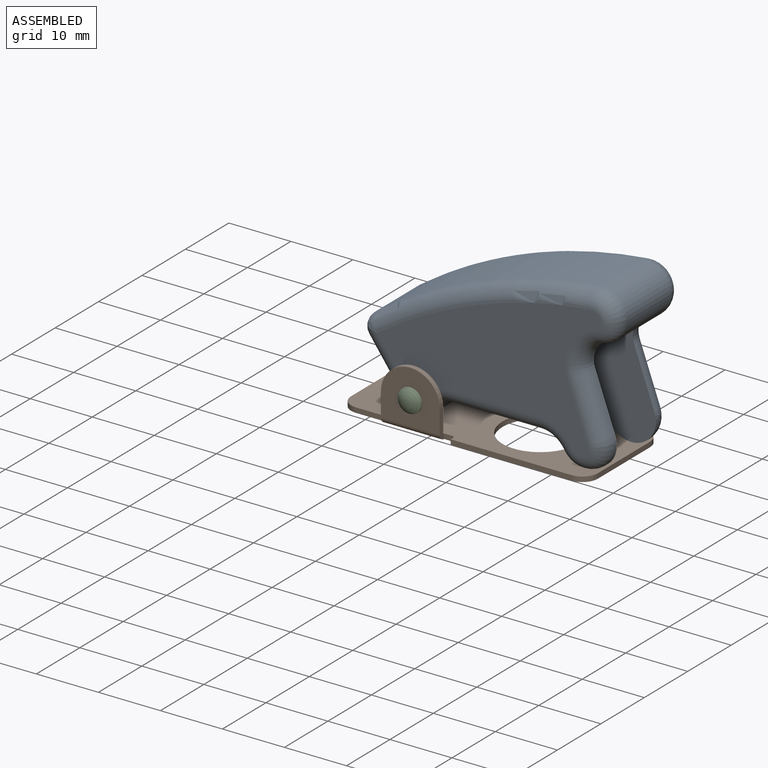
[diagram: assembled view]
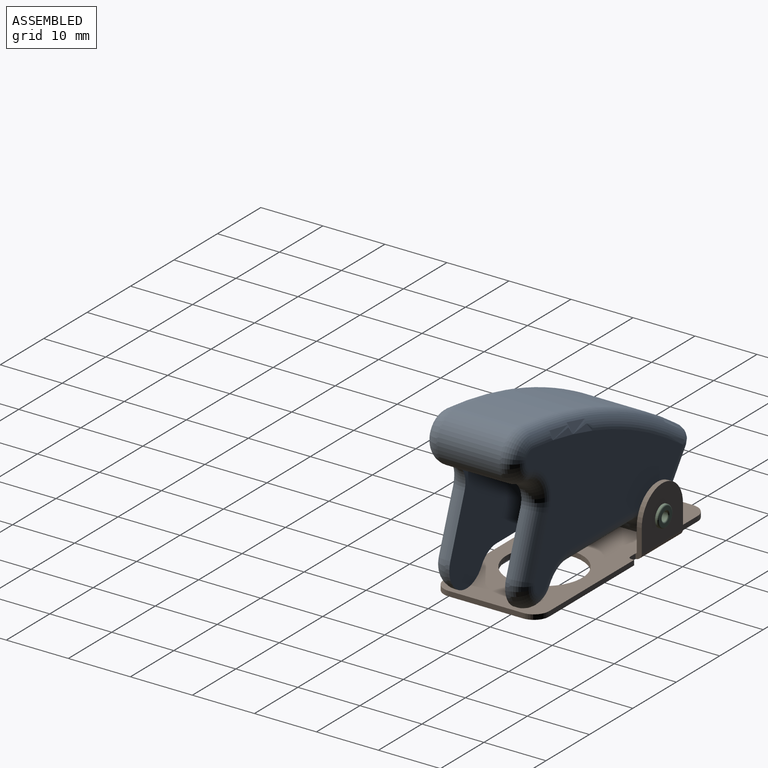
[diagram: assembled view, second angle]
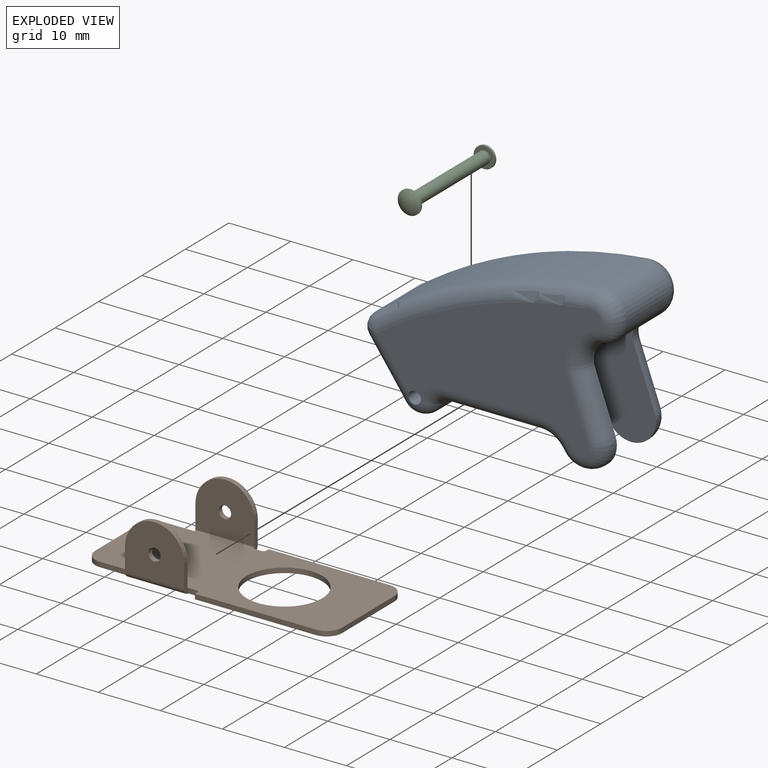
[diagram: exploded view]
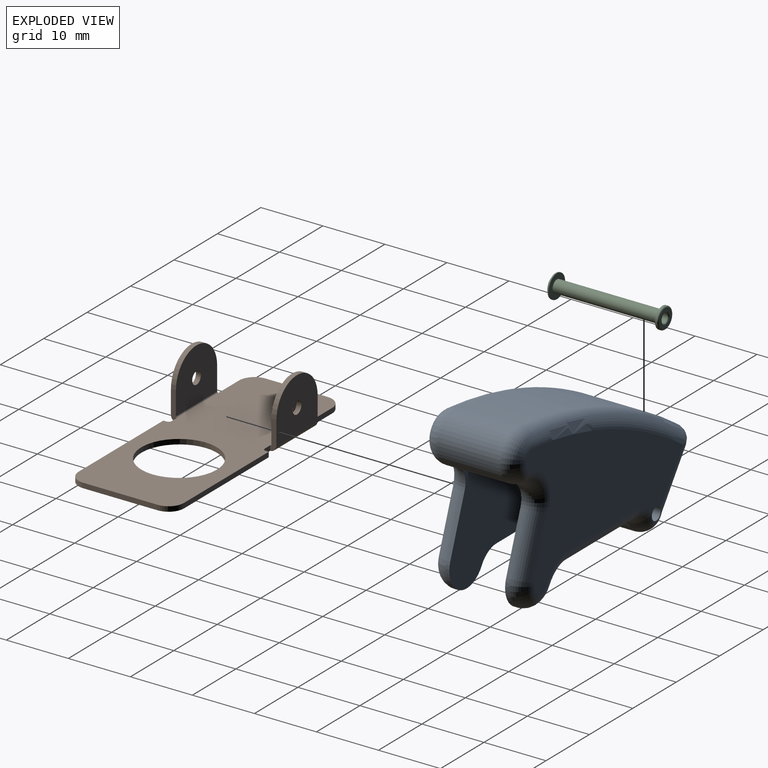
[diagram: exploded view, second angle]
ASSEMBLY  parts=3 mates=2
PART A: 47 faces, bbox 44.1x15.2x33 mm
  f0: plane 15.02x10mm, normal (0,0,-1), area 58mm2, adj f1,f9,f10,f17,f18,f19,f32,f45
  f1: cylinder r=4mm len=3.45mm, axis (0,1,0), area 2.1mm2, adj f0,f2,f18,f33
  f2: cylinder r=4mm len=7.45mm, axis (0,1,0), area 5.9mm2, adj f1,f3,f18,f31
  f3: plane 9x3.27mm, normal (0.94,0,0.34), area 4.8mm2, adj f2,f4,f18,f29
  f4: cylinder r=3.5mm len=4.6mm, axis (0,1,0), area 2.9mm2, adj f3,f14,f18,f27
  f5: cylinder r=75mm len=36.15mm, axis (0,1,0), area 389.9mm2, adj f6,f14,f23,f36
  f6: cylinder r=2mm len=10mm, axis (0,1,0), area 31.6mm2, adj f5,f7,f21,f34
  f7: plane 10.1x8.43mm, normal (-0.81,0,-0.58), area 103.9mm2, adj f6,f8,f22,f24,f35,f37
  f8: cylinder r=3mm len=10.1mm, axis (0,1,0), area 63.8mm2, adj f7,f9,f26,f39
  f9: cylinder r=2mm len=10.1mm, axis (0,1,0), area 23.2mm2, adj f0,f8,f28,f30,f41,f43
  f10: cylinder r=4mm len=3.45mm, axis (0,1,0), area 2.1mm2, adj f0,f11,f19,f46
  f11: cylinder r=4mm len=7.45mm, axis (0,1,0), area 5.9mm2, adj f10,f12,f19,f44
  f12: plane 9x3.27mm, normal (0.94,0,0.34), area 4.8mm2, adj f11,f13,f19,f42
  f13: cylinder r=3.5mm len=4.6mm, axis (0,1,0), area 2.9mm2, adj f12,f14,f19,f40
  f14: cylinder r=4mm len=10mm, axis (0,1,0), area 180.8mm2, adj f4,f5,f13,f17,f18,f19,f25,f38
  f15: plane 36.17x21.85mm, normal (0,-1,0), area 430.7mm2, adj f20,f35,f36,f38,f40,f42,f43,f44
  f16: plane 36.17x21.85mm, normal (0,1,0), area 430.7mm2, adj f20,f22,f23,f25,f27,f29,f30,f31
  f17: cylinder r=25mm len=18.43mm, axis (0,-1,0), area 224mm2, adj f0,f14,f18,f19
  f18: plane 22.38x21.14mm, normal (0,-1,0), area 275.4mm2, adj f0,f1,f2,f3,f4,f14,f17
  f19: plane 22.38x21.14mm, normal (0,1,0), area 275.4mm2, adj f0,f10,f11,f12,f13,f14,f17
  f20: cylinder r=1mm len=15mm, axis (0,-1,0), area 94.2mm2, adj f15,f16,f24,f26,f28,f37,f39,f41
  f21: bspline ~3.5x3.28mm, area 8.1mm2, adj f6,f22,f23
  f22: cylinder r=2.5mm len=9.19mm, axis (0.58,0,-0.81), area 36.4mm2, adj f7,f16,f21,f24
  f23: torus R=72.5mm, axis (0,-1,0), area 150.2mm2, adj f5,f16,f21,f25
  f24: bspline ~2.6x2.39mm, area 3.1mm2, adj f7,f20,f22,f26
  f25: torus R=1.5mm, axis (0,-1,0), area 36.4mm2, adj f14,f16,f23,f27
  f26: torus R=0.5mm, axis (0,1,0), area 16.5mm2, adj f8,f20,f24,f28
  f27: torus R=6mm, axis (0,-1,0), area 29.1mm2, adj f4,f16,f25,f29
  f28: bspline ~2.5x2.13mm, area 1.8mm2, adj f9,f20,f26,f30
  f29: cylinder r=2.5mm len=9.85mm, axis (-0.34,0,0.94), area 37.6mm2, adj f3,f16,f27,f31
  f30: torus R=4.5mm, axis (0,-1,0), area 11.2mm2, adj f9,f16,f28,f32
  f31: torus R=1.5mm, axis (0,-1,0), area 35.9mm2, adj f2,f16,f29,f33
  f32: cylinder r=2.5mm len=15.02mm, axis (1,0,0), area 59mm2, adj f0,f16,f30,f33
  f33: torus R=6.5mm, axis (0,-1,0), area 20mm2, adj f1,f16,f31,f32
  f34: bspline ~3.5x3.28mm, area 8.1mm2, adj f6,f35,f36
  f35: cylinder r=2.5mm len=9.19mm, axis (-0.58,0,0.81), area 36.4mm2, adj f7,f15,f34,f37
  f36: torus R=72.5mm, axis (0,-1,0), area 150.2mm2, adj f5,f15,f34,f38
  f37: bspline ~2.6x2.39mm, area 3.1mm2, adj f7,f20,f35,f39
  f38: torus R=1.5mm, axis (0,-1,0), area 36.4mm2, adj f14,f15,f36,f40
  f39: torus R=0.5mm, axis (0,-1,0), area 16.5mm2, adj f8,f20,f37,f41
  f40: torus R=6mm, axis (0,-1,0), area 29.1mm2, adj f13,f15,f38,f42
  f41: bspline ~2.5x2.13mm, area 1.8mm2, adj f9,f20,f39,f43
  f42: cylinder r=2.5mm len=9.85mm, axis (0.34,0,-0.94), area 37.6mm2, adj f12,f15,f40,f44
  f43: torus R=4.5mm, axis (0,-1,0), area 11.2mm2, adj f9,f15,f41,f45
  f44: torus R=1.5mm, axis (0,-1,0), area 35.9mm2, adj f11,f15,f42,f46
  f45: cylinder r=2.5mm len=15.02mm, axis (-1,0,0), area 59mm2, adj f0,f15,f43,f46
  f46: torus R=6.5mm, axis (0,-1,0), area 20mm2, adj f10,f15,f44,f45
PART B: 39 faces, bbox 40.5x17x9.5 mm
  f0: plane 19.5x0.8mm, normal (0,-1,0), area 15.6mm2, adj f1,f11,f12,f14
  f1: plane 0.8x0.5mm, normal (-1,0,0), area 0.4mm2, adj f0,f11,f12,f18
  f2: plane 1.25x0.8mm, normal (0,-1,0), area 1mm2, adj f11,f12,f18,f35
  f3: plane 4.75x0.8mm, normal (0,-1,0), area 3.8mm2, adj f11,f12,f13,f36
  f4: plane 10x0.8mm, normal (-1,0,0), area 8mm2, adj f11,f12,f13,f15
  f5: plane 4.75x0.8mm, normal (0,1,0), area 3.8mm2, adj f11,f12,f15,f25
  f6: plane 1.25x0.8mm, normal (0,1,0), area 1mm2, adj f11,f12,f17,f26
  f7: plane 0.8x0.5mm, normal (-1,0,0), area 0.4mm2, adj f8,f11,f12,f17
  f8: plane 19.5x0.8mm, normal (0,1,0), area 15.6mm2, adj f7,f11,f12,f16
  f9: cylinder r=6.1mm len=12.2mm, axis (0,0,1), area 30.7mm2, adj f11,f12
  f10: plane 12x0.8mm, normal (1,0,0), area 9.6mm2, adj f11,f12,f14,f16
  f11: plane 40.5x17mm, normal (0,0,-1), area 529.3mm2, adj f0,f1,f2,f3,f4,f5,f6,f7
  f12: plane 40.5x17mm, normal (0,0,1), area 529.3mm2, adj f0,f1,f2,f3,f4,f5,f6,f7
  f13: cylinder r=2.5mm len=2.5mm, axis (0,0,-1), area 3.1mm2, adj f3,f4,f11,f12
  f14: cylinder r=2.5mm len=2.5mm, axis (0,0,1), area 3.1mm2, adj f0,f10,f11,f12
  f15: cylinder r=2.5mm len=2.5mm, axis (0,0,-1), area 3.1mm2, adj f4,f5,f11,f12
  f16: cylinder r=2.5mm len=2.5mm, axis (0,0,1), area 3.1mm2, adj f8,f10,f11,f12
  f17: cylinder r=0.5mm len=0.8mm, axis (0,0,1), area 0.6mm2, adj f6,f7,f11,f12
  f18: cylinder r=0.5mm len=0.8mm, axis (0,0,1), area 0.6mm2, adj f1,f2,f11,f12
  f19: plane 3.75x0.8mm, normal (1,0,0), area 3mm2, adj f22,f23,f24,f26
  f20: plane 3.75x0.8mm, normal (-1,0,0), area 3mm2, adj f22,f23,f24,f25
  f21: cylinder r=1mm len=2mm, axis (0,1,0), area 5mm2, adj f23,f24
  f22: cylinder r=4.75mm len=9.5mm, axis (0,1,0), area 11.9mm2, adj f19,f20,f23,f24
  f23: plane 9.5x8.5mm, normal (0,1,0), area 67.9mm2, adj f19,f20,f21,f22,f27
  f24: plane 9.5x8.5mm, normal (0,-1,0), area 67.9mm2, adj f19,f20,f21,f22,f28
  f25: plane 1x1mm, normal (-1,0,0), area 0.8mm2, adj f5,f20,f27,f28
  f26: plane 1x1mm, normal (1,0,0), area 0.8mm2, adj f6,f19,f27,f28
  f27: cylinder r=1mm len=9.5mm, axis (-1,0,0), area 14.9mm2, adj f11,f23,f25,f26
  f28: cylinder r=0.2mm len=9.5mm, axis (-1,0,0), area 3mm2, adj f12,f24,f25,f26
  f29: plane 3.75x0.8mm, normal (-1,0,0), area 3mm2, adj f32,f33,f34,f36
  f30: plane 3.75x0.8mm, normal (1,0,0), area 3mm2, adj f32,f33,f34,f35
  f31: cylinder r=1mm len=2mm, axis (0,-1,0), area 5mm2, adj f33,f34
  f32: cylinder r=4.75mm len=9.5mm, axis (0,-1,0), area 11.9mm2, adj f29,f30,f33,f34
  f33: plane 9.5x8.5mm, normal (0,-1,0), area 67.9mm2, adj f29,f30,f31,f32,f37
  f34: plane 9.5x8.5mm, normal (0,1,0), area 67.9mm2, adj f29,f30,f31,f32,f38
  f35: plane 1x1mm, normal (1,0,0), area 0.8mm2, adj f2,f30,f37,f38
  f36: plane 1x1mm, normal (-1,0,0), area 0.8mm2, adj f3,f29,f37,f38
  f37: cylinder r=1mm len=9.5mm, axis (1,0,0), area 14.9mm2, adj f11,f33,f35,f36
  f38: cylinder r=0.2mm len=9.5mm, axis (1,0,0), area 3mm2, adj f12,f34,f35,f36
PART C: 11 faces, bbox 3.8x18.4x3.8 mm
  f0: plane 3.4x3.4mm, normal (0,-1,0), area 5.9mm2, adj f1,f8
  f1: cylinder r=1mm len=17mm, axis (0,1,0), area 106.8mm2, adj f0,f2
  f2: plane 3.8x3.8mm, normal (0,1,0), area 8.2mm2, adj f1,f3
  f3: cylinder r=1.9mm len=3.8mm, axis (0,1,0), area 2.4mm2, adj f2,f4
  f4: sphere r=2.93mm, area 12.9mm2, adj f3
  f5: cone r=0.75mm half-angle=59deg, axis (0,1,0), area 2.1mm2, adj f6
  f6: cylinder r=0.75mm len=1.5mm, axis (0,1,0), area 3.8mm2, adj f5,f9
  f7: plane 3x3mm, normal (0,1,0), area 4.2mm2, adj f9,f10
  f8: cylinder r=1.7mm len=3.4mm, axis (0,1,0), area 3.2mm2, adj f0,f10
  f9: torus R=0.95mm, axis (0,-1,0), area 1.6mm2, adj f6,f7
  f10: torus R=1.5mm, axis (0,-1,0), area 3.2mm2, adj f7,f8
PLACE A t=(-56.71,57.06,29.24)mm
PLACE B t=(-56.71,57.06,29.24)mm
PLACE C t=(-56.71,57.06,29.24)mm
MATE fastened A.f8 <-> C.f1  axis (0,-1,0) through (-71.71,57.06,33.99)mm
MATE fastened C.f1 <-> B.f31  axis (0,-1,0) through (-71.71,65.56,33.99)mm
